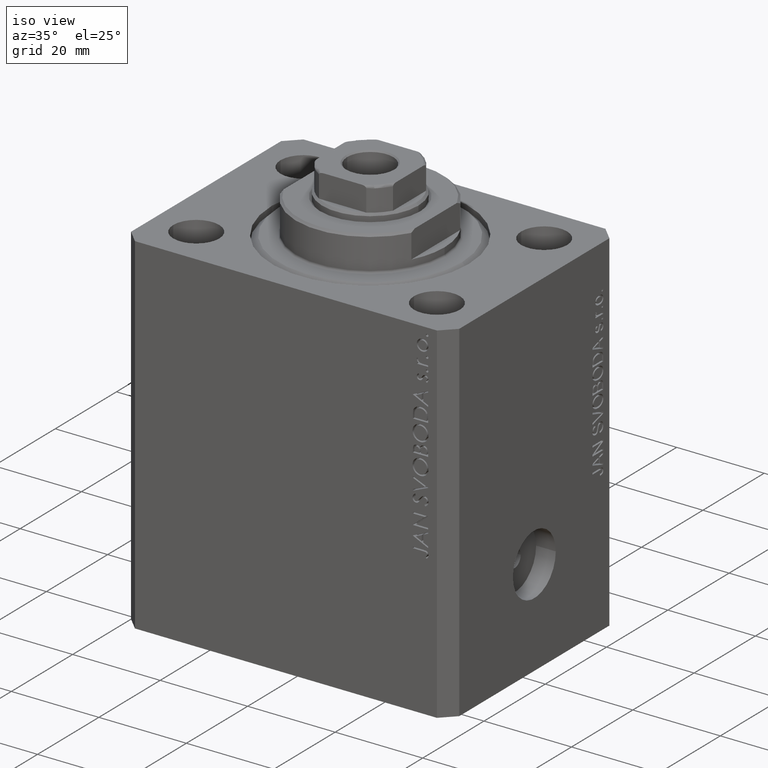
[diagram: clean part render]
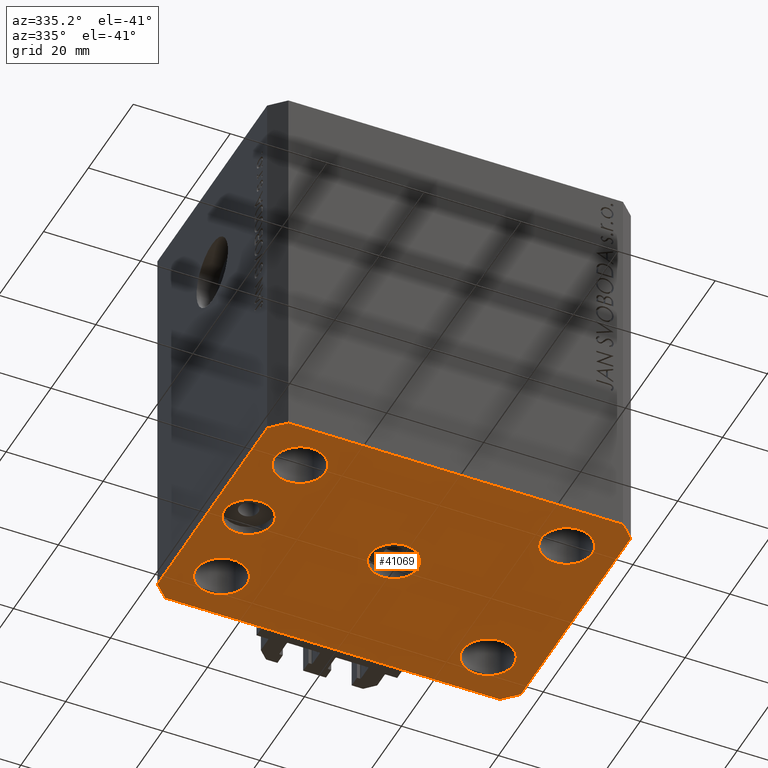
[diagram: tour spotlight — one face highlighted and labeled with its STEP entity id]
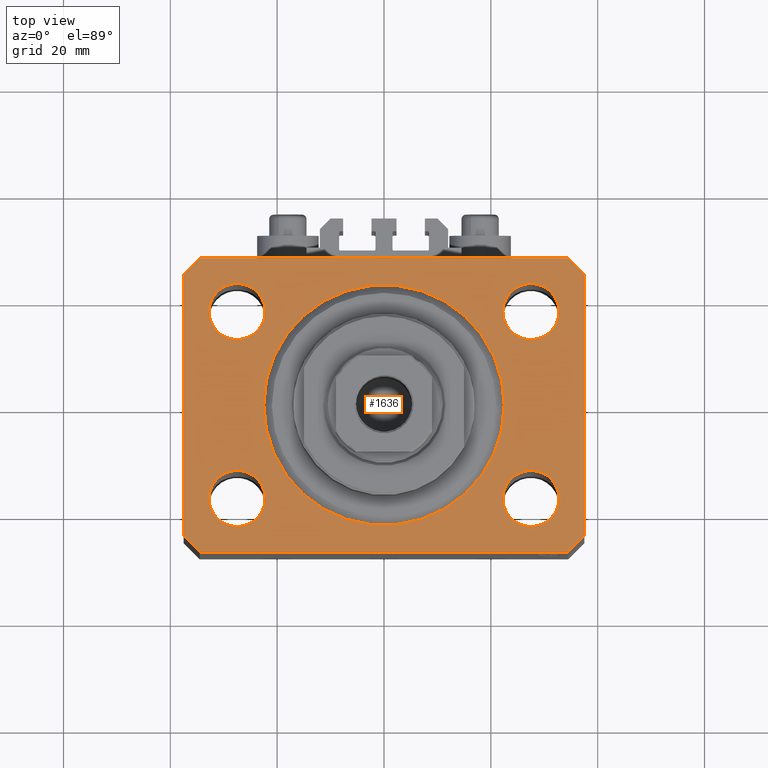
[diagram: tour spotlight — one face highlighted and labeled with its STEP entity id]
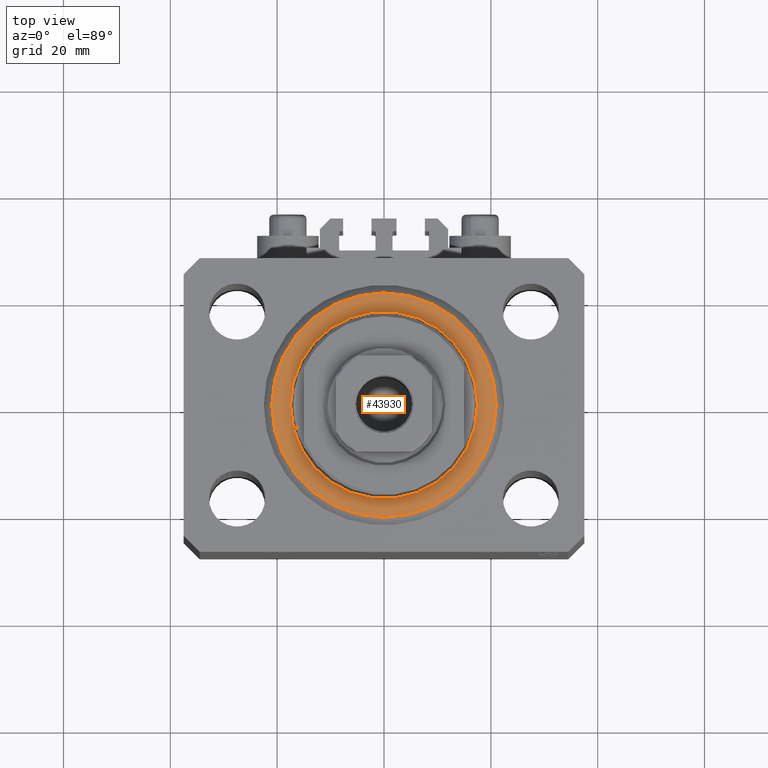
[diagram: tour spotlight — one face highlighted and labeled with its STEP entity id]
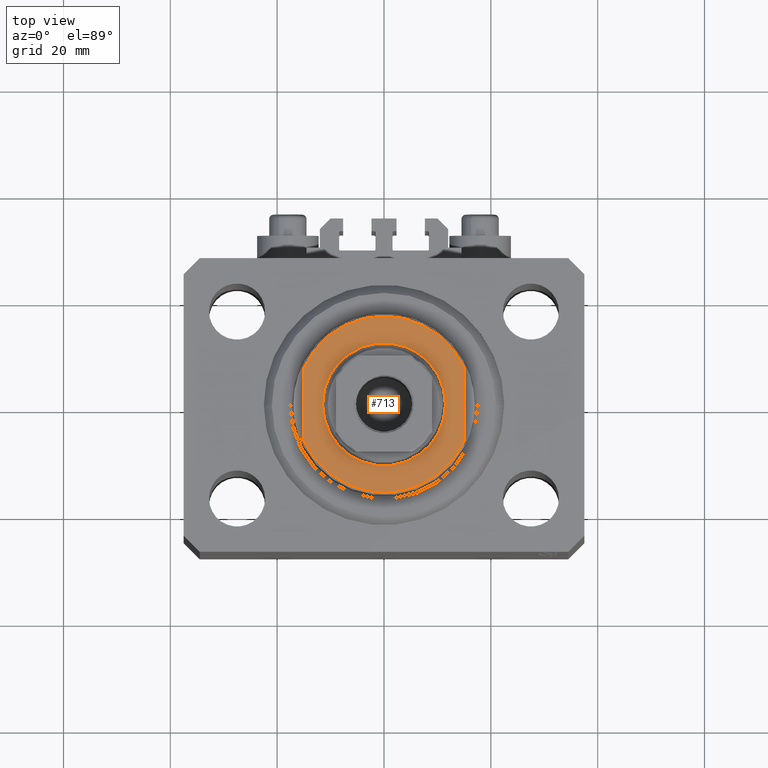
[diagram: tour spotlight — one face highlighted and labeled with its STEP entity id]
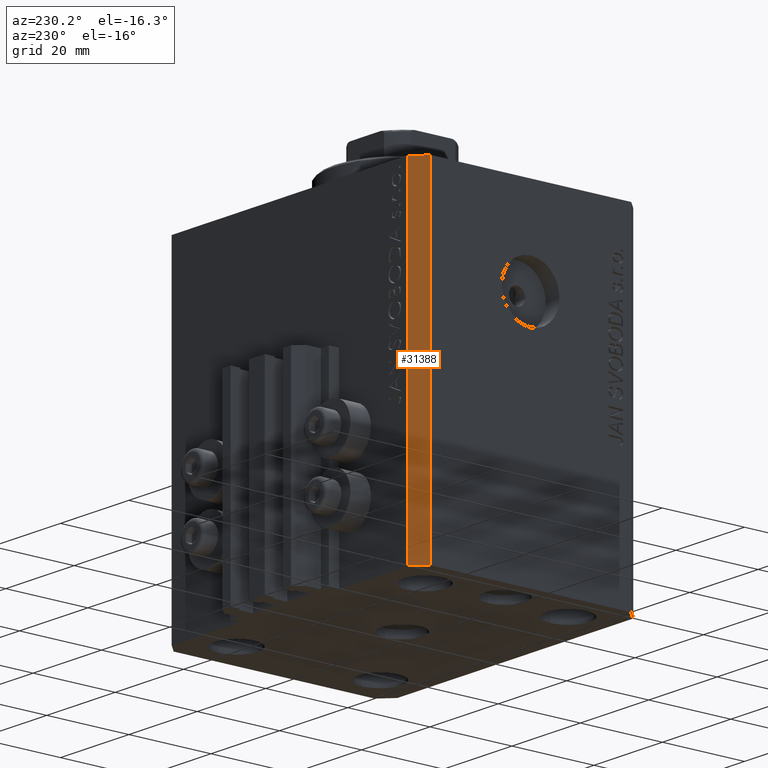
[diagram: tour spotlight — one face highlighted and labeled with its STEP entity id]
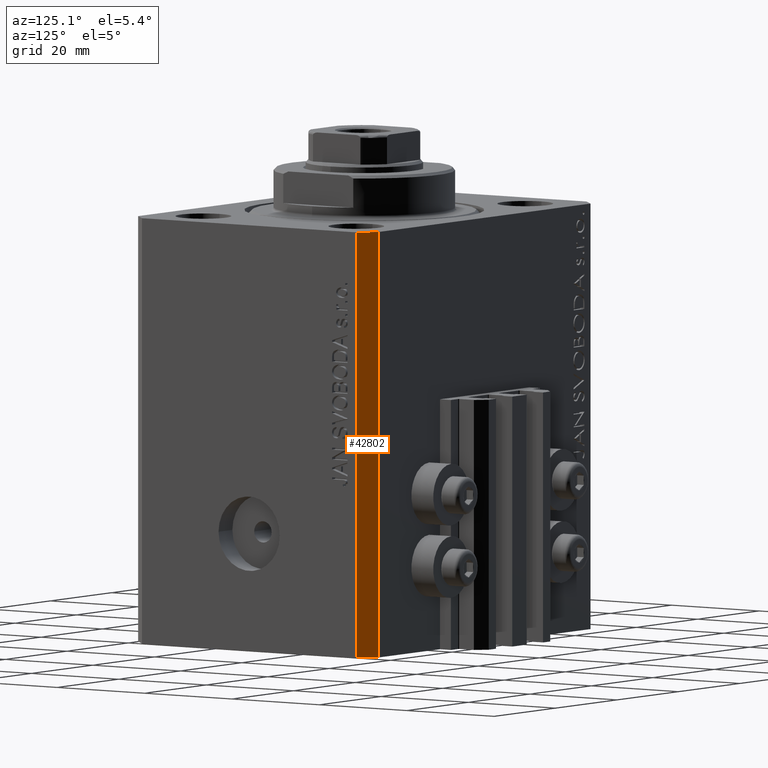
[diagram: tour spotlight — one face highlighted and labeled with its STEP entity id]
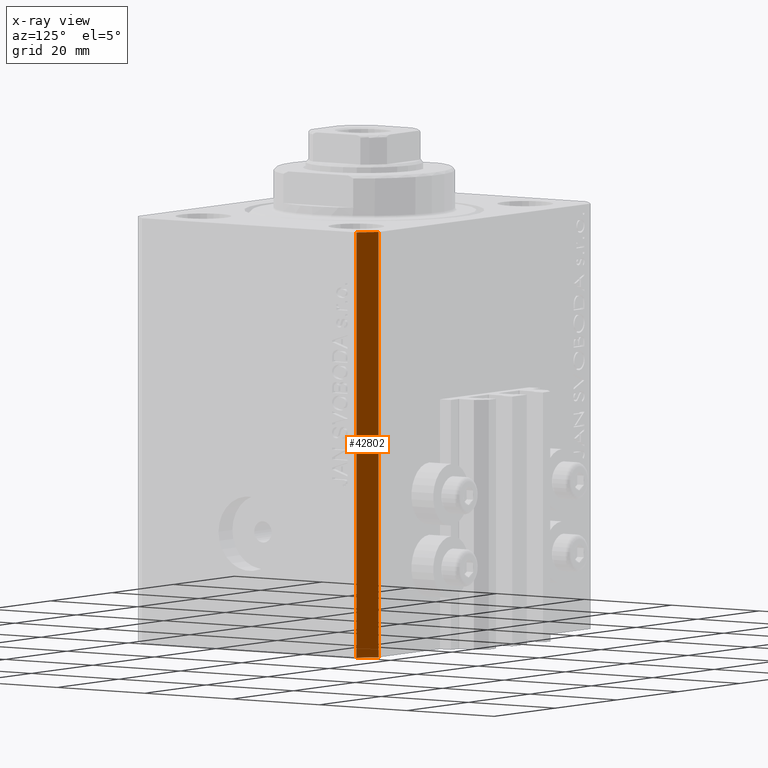
[diagram: x-ray of the same camera — body ghosted, this tour face saturated]
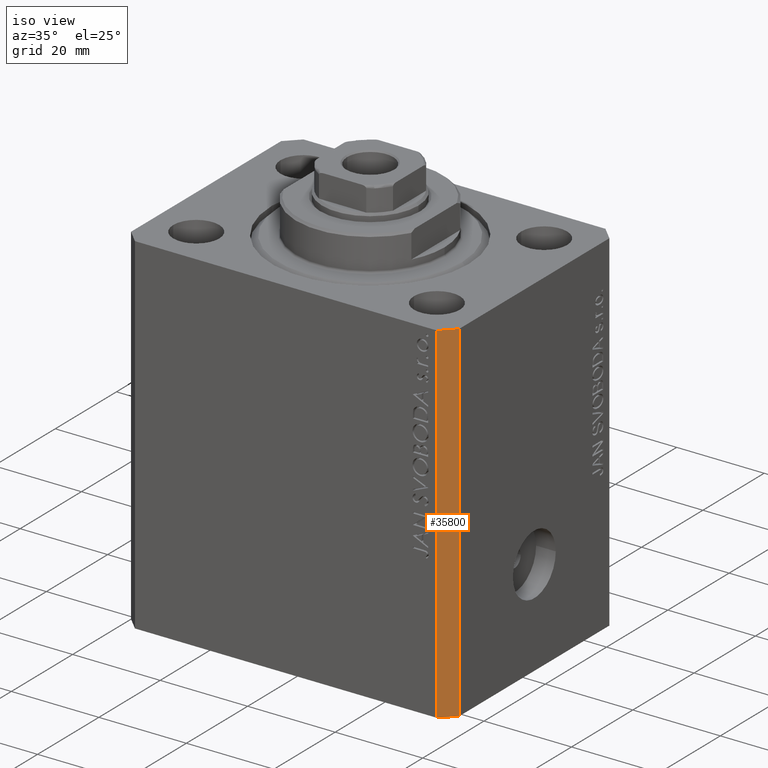
[diagram: tour spotlight — one face highlighted and labeled with its STEP entity id]
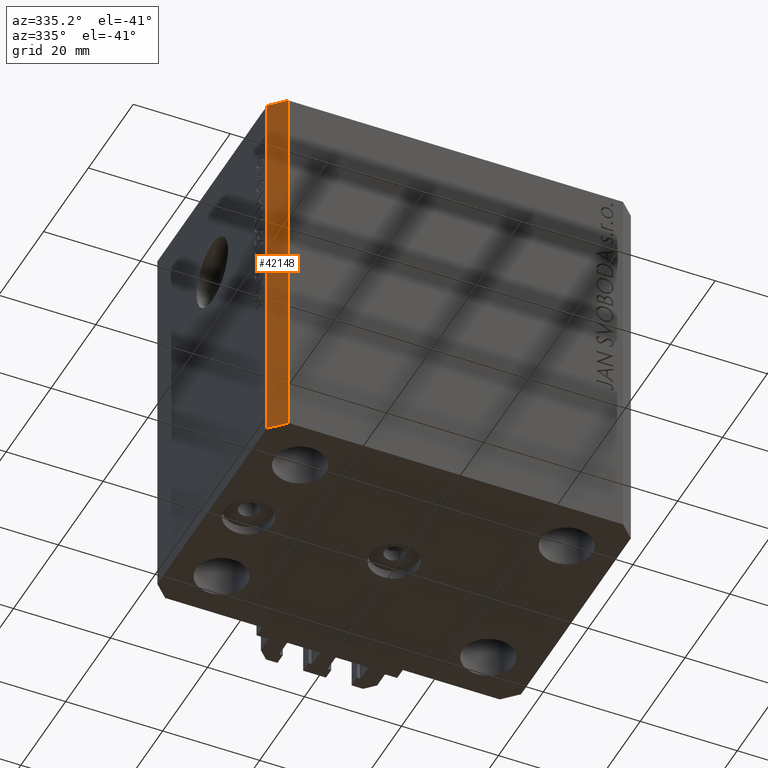
[diagram: tour spotlight — one face highlighted and labeled with its STEP entity id]
A machine part: a face-by-face anatomy tour. The part has 1042 B-rep faces; the first image is the clean iso view, then the 8 largest visible faces are spotlighted one at a time (largest first), each with its STEP entity span.

Face 1 — auxiliary view, entity #41069. In plain terms, the highlighted planar face has unit normal (0, 0, 1).
Definition (entity closure, byte-faithful):
#399 = EDGE_CURVE ( 'NONE', #25003, #41657, #3808, .T. ) ;
#533 = VECTOR ( 'NONE', #46873, 1000.000000000000000 ) ;
#963 = CARTESIAN_POINT ( 'NONE',  ( -22.25000000000000000, 17.49999999999999645, -80.00000000000000000 ) ) ;
#1087 = LINE ( 'NONE', #8998, #23599 ) ;
#1459 = VERTEX_POINT ( 'NONE', #36708 ) ;
#1566 = ORIENTED_EDGE ( 'NONE', *, *, #33395, .F. ) ;
#1682 = VERTEX_POINT ( 'NONE', #45585 ) ;
#1717 = DIRECTION ( 'NONE',  ( 1.000000000000000000, 0.000000000000000000, 0.000000000000000000 ) ) ;
#1892 = DIRECTION ( 'NONE',  ( -1.000000000000000000, 0.000000000000000000, 0.000000000000000000 ) ) ;
#1966 = EDGE_LOOP ( 'NONE', ( #25850, #8445 ) ) ;
#1984 = DIRECTION ( 'NONE',  ( -0.000000000000000000, -0.000000000000000000, -1.000000000000000000 ) ) ;
#2019 = ORIENTED_EDGE ( 'NONE', *, *, #45847, .F. ) ;
#2471 = LINE ( 'NONE', #28149, #533 ) ;
#3060 = DIRECTION ( 'NONE',  ( -1.000000000000000000, 0.000000000000000000, 0.000000000000000000 ) ) ;
#3165 = FACE_BOUND ( 'NONE', #20021, .T. ) ;
#3426 = AXIS2_PLACEMENT_3D ( 'NONE', #5314, #16576, #1717 ) ;
#3557 = VERTEX_POINT ( 'NONE', #45175 ) ;
#3572 = CARTESIAN_POINT ( 'NONE',  ( -32.74999999999999289, -17.50000000000000000, -80.00000000000000000 ) ) ;
#3704 = EDGE_CURVE ( 'NONE', #20411, #20989, #30283, .T. ) ;
#3808 = CIRCLE ( 'NONE', #30648, 5.250000000000000888 ) ;
#3815 = AXIS2_PLACEMENT_3D ( 'NONE', #40342, #39634, #24756 ) ;
#4281 = CARTESIAN_POINT ( 'NONE',  ( 32.74999999999999289, -17.50000000000000000, -80.00000000000000000 ) ) ;
#4323 = CARTESIAN_POINT ( 'NONE',  ( 37.49999999999999289, -24.50000000000000000, -80.00000000000000000 ) ) ;
#4923 = DIRECTION ( 'NONE',  ( 0.7071067811865474617, 0.7071067811865474617, 0.000000000000000000 ) ) ;
#5058 = ORIENTED_EDGE ( 'NONE', *, *, #18304, .F. ) ;
#5314 = CARTESIAN_POINT ( 'NONE',  ( -27.49999999999999289, -17.50000000000000000, -80.00000000000000000 ) ) ;
#5462 = CIRCLE ( 'NONE', #39184, 5.250000000000000888 ) ;
#5565 = CARTESIAN_POINT ( 'NONE',  ( -37.49999999999999289, -24.50000000000000000, -80.00000000000000000 ) ) ;
#5802 = VERTEX_POINT ( 'NONE', #24532 ) ;
#6097 = EDGE_CURVE ( 'NONE', #1459, #46765, #34820, .T. ) ;
#6750 = CARTESIAN_POINT ( 'NONE',  ( 27.49999999999999289, -17.50000000000000000, -80.00000000000000000 ) ) ;
#6757 = FACE_BOUND ( 'NONE', #34904, .T. ) ;
#7063 = CARTESIAN_POINT ( 'NONE',  ( 22.24999999999999289, -17.50000000000000000, -80.00000000000000000 ) ) ;
#8445 = ORIENTED_EDGE ( 'NONE', *, *, #29225, .F. ) ;
#8888 = VERTEX_POINT ( 'NONE', #4281 ) ;
#8998 = CARTESIAN_POINT ( 'NONE',  ( 34.49999999999999289, -27.49999999999999645, -80.00000000000000000 ) ) ;
#9039 = EDGE_CURVE ( 'NONE', #22486, #1459, #13839, .T. ) ;
#9702 = CARTESIAN_POINT ( 'NONE',  ( -34.49999999999999289, 27.50000000000000000, -80.00000000000000000 ) ) ;
#9847 = DIRECTION ( 'NONE',  ( 0.000000000000000000, -1.000000000000000000, 0.000000000000000000 ) ) ;
#10088 = LINE ( 'NONE', #20639, #40788 ) ;
#10659 = AXIS2_PLACEMENT_3D ( 'NONE', #35146, #17365, #31538 ) ;
#10701 = ORIENTED_EDGE ( 'NONE', *, *, #15253, .F. ) ;
#11080 = CARTESIAN_POINT ( 'NONE',  ( 5.000000000000000000, 6.123233995736765296E-16, -80.00000000000000000 ) ) ;
#11100 = CARTESIAN_POINT ( 'NONE',  ( -27.49999999999999289, -17.50000000000000000, -80.00000000000000000 ) ) ;
#11418 = VERTEX_POINT ( 'NONE', #27967 ) ;
#11559 = CIRCLE ( 'NONE', #36848, 5.250000000000000888 ) ;
#12107 = CARTESIAN_POINT ( 'NONE',  ( -25.00000000000000000, 6.123233995736762338E-16, -80.00000000000000000 ) ) ;
#13497 = ORIENTED_EDGE ( 'NONE', *, *, #6097, .F. ) ;
#13544 = ORIENTED_EDGE ( 'NONE', *, *, #9039, .F. ) ;
#13785 = ORIENTED_EDGE ( 'NONE', *, *, #40191, .F. ) ;
#13839 = LINE ( 'NONE', #14302, #36383 ) ;
#13963 = CARTESIAN_POINT ( 'NONE',  ( 0.000000000000000000, 0.000000000000000000, -80.00000000000000000 ) ) ;
#14302 = CARTESIAN_POINT ( 'NONE',  ( 37.49999999999999289, -24.50000000000000000, -80.00000000000000000 ) ) ;
#14798 = EDGE_LOOP ( 'NONE', ( #42600, #1566 ) ) ;
#15055 = VERTEX_POINT ( 'NONE', #7063 ) ;
#15253 = EDGE_CURVE ( 'NONE', #11418, #31894, #2471, .T. ) ;
#15256 = CARTESIAN_POINT ( 'NONE',  ( 27.50000000000000000, 17.49999999999999289, -80.00000000000000000 ) ) ;
#15467 = DIRECTION ( 'NONE',  ( -1.000000000000000000, 0.000000000000000000, 0.000000000000000000 ) ) ;
#16576 = DIRECTION ( 'NONE',  ( -0.000000000000000000, -0.000000000000000000, -1.000000000000000000 ) ) ;
#16780 = CARTESIAN_POINT ( 'NONE',  ( 34.50000000000056843, 27.50000000000000000, -80.00000000000000000 ) ) ;
#16962 = DIRECTION ( 'NONE',  ( -0.000000000000000000, -0.000000000000000000, -1.000000000000000000 ) ) ;
#17034 = CIRCLE ( 'NONE', #32382, 4.999999999999997335 ) ;
#17331 = FACE_BOUND ( 'NONE', #25890, .T. ) ;
#17365 = DIRECTION ( 'NONE',  ( -0.000000000000000000, -0.000000000000000000, -1.000000000000000000 ) ) ;
#17562 = FACE_BOUND ( 'NONE', #19934, .T. ) ;
#17800 = PLANE ( 'NONE',  #34584 ) ;
#17929 = DIRECTION ( 'NONE',  ( 0.000000000000000000, 0.000000000000000000, -1.000000000000000000 ) ) ;
#18166 = EDGE_CURVE ( 'NONE', #31894, #22486, #1087, .T. ) ;
#18304 = EDGE_CURVE ( 'NONE', #18966, #1682, #42353, .T. ) ;
#18966 = VERTEX_POINT ( 'NONE', #32311 ) ;
#19934 = EDGE_LOOP ( 'NONE', ( #13785, #32236 ) ) ;
#20021 = EDGE_LOOP ( 'NONE', ( #46143, #39028 ) ) ;
#20041 = ORIENTED_EDGE ( 'NONE', *, *, #399, .F. ) ;
#20131 = VECTOR ( 'NONE', #1892, 1000.000000000000000 ) ;
#20254 = EDGE_CURVE ( 'NONE', #41640, #24401, #39763, .T. ) ;
#20411 = VERTEX_POINT ( 'NONE', #38021 ) ;
#20432 = DIRECTION ( 'NONE',  ( 0.7071067811865483499, -0.7071067811865466846, 0.000000000000000000 ) ) ;
#20585 = CARTESIAN_POINT ( 'NONE',  ( 34.50000000000056843, 27.50000000000000000, -80.00000000000000000 ) ) ;
#20639 = CARTESIAN_POINT ( 'NONE',  ( -37.49999999999999289, 24.50000000000000000, -80.00000000000000000 ) ) ;
#20799 = CARTESIAN_POINT ( 'NONE',  ( 27.50000000000000000, 17.49999999999999289, -80.00000000000000000 ) ) ;
#20886 = CARTESIAN_POINT ( 'NONE',  ( 32.75000000000000000, 17.49999999999999289, -80.00000000000000000 ) ) ;
#20933 = FACE_BOUND ( 'NONE', #14798, .T. ) ;
#20989 = VERTEX_POINT ( 'NONE', #3572 ) ;
#21507 = EDGE_LOOP ( 'NONE', ( #33316, #13497, #13544, #44033, #10701, #30804, #39022, #5058 ) ) ;
#21637 = DIRECTION ( 'NONE',  ( 1.000000000000000000, 0.000000000000000000, 0.000000000000000000 ) ) ;
#21713 = CARTESIAN_POINT ( 'NONE',  ( -32.75000000000000000, 17.49999999999999645, -80.00000000000000000 ) ) ;
#21917 = VERTEX_POINT ( 'NONE', #23278 ) ;
#22009 = EDGE_CURVE ( 'NONE', #41183, #5802, #31404, .T. ) ;
#22406 = CIRCLE ( 'NONE', #33131, 5.000000000000000000 ) ;
#22486 = VERTEX_POINT ( 'NONE', #4323 ) ;
#23248 = EDGE_CURVE ( 'NONE', #41657, #25003, #38237, .T. ) ;
#23278 = CARTESIAN_POINT ( 'NONE',  ( 22.25000000000000000, 17.49999999999999289, -80.00000000000000000 ) ) ;
#23599 = VECTOR ( 'NONE', #4923, 1000.000000000000114 ) ;
#24059 = DIRECTION ( 'NONE',  ( 1.000000000000000000, 0.000000000000000000, 0.000000000000000000 ) ) ;
#24401 = VERTEX_POINT ( 'NONE', #12107 ) ;
#24532 = CARTESIAN_POINT ( 'NONE',  ( -5.000000000000000000, 0.000000000000000000, -80.00000000000000000 ) ) ;
#24756 = DIRECTION ( 'NONE',  ( 1.000000000000000000, 0.000000000000000000, 0.000000000000000000 ) ) ;
#24779 = DIRECTION ( 'NONE',  ( 1.000000000000000000, 0.000000000000000000, -0.000000000000000000 ) ) ;
#25003 = VERTEX_POINT ( 'NONE', #963 ) ;
#25161 = AXIS2_PLACEMENT_3D ( 'NONE', #28198, #42843, #39242 ) ;
#25501 = EDGE_CURVE ( 'NONE', #3557, #11418, #38466, .T. ) ;
#25850 = ORIENTED_EDGE ( 'NONE', *, *, #3704, .F. ) ;
#25890 = EDGE_LOOP ( 'NONE', ( #2019, #33285 ) ) ;
#25976 = DIRECTION ( 'NONE',  ( 1.000000000000000000, 0.000000000000000000, 0.000000000000000000 ) ) ;
#27772 = ORIENTED_EDGE ( 'NONE', *, *, #23248, .F. ) ;
#27872 = AXIS2_PLACEMENT_3D ( 'NONE', #6750, #43491, #21637 ) ;
#27967 = CARTESIAN_POINT ( 'NONE',  ( -34.49999999999998579, -27.49999999999999645, -80.00000000000000000 ) ) ;
#28019 = DIRECTION ( 'NONE',  ( 1.000000000000000000, 0.000000000000000000, 0.000000000000000000 ) ) ;
#28149 = CARTESIAN_POINT ( 'NONE',  ( -34.49999999999998579, -27.49999999999999645, -80.00000000000000000 ) ) ;
#28198 = CARTESIAN_POINT ( 'NONE',  ( -30.00000000000000000, 0.000000000000000000, -80.00000000000000000 ) ) ;
#28325 = AXIS2_PLACEMENT_3D ( 'NONE', #33719, #45247, #15467 ) ;
#28850 = DIRECTION ( 'NONE',  ( 0.000000000000000000, 0.000000000000000000, 1.000000000000000000 ) ) ;
#28954 = DIRECTION ( 'NONE',  ( 1.076236605503979380E-14, 1.000000000000000000, 0.000000000000000000 ) ) ;
#29225 = EDGE_CURVE ( 'NONE', #20989, #20411, #36854, .T. ) ;
#29939 = EDGE_CURVE ( 'NONE', #21917, #42935, #5462, .T. ) ;
#30283 = CIRCLE ( 'NONE', #3426, 5.250000000000000888 ) ;
#30648 = AXIS2_PLACEMENT_3D ( 'NONE', #34869, #1984, #24059 ) ;
#30804 = ORIENTED_EDGE ( 'NONE', *, *, #25501, .F. ) ;
#31404 = CIRCLE ( 'NONE', #28325, 5.000000000000000000 ) ;
#31447 = CARTESIAN_POINT ( 'NONE',  ( 37.50000000000051870, 24.49999999999995381, -80.00000000000000000 ) ) ;
#31538 = DIRECTION ( 'NONE',  ( 1.000000000000000000, 0.000000000000000000, 0.000000000000000000 ) ) ;
#31894 = VERTEX_POINT ( 'NONE', #41969 ) ;
#31974 = FACE_OUTER_BOUND ( 'NONE', #21507, .T. ) ;
#32236 = ORIENTED_EDGE ( 'NONE', *, *, #29939, .F. ) ;
#32311 = CARTESIAN_POINT ( 'NONE',  ( -34.49999999999999289, 27.50000000000000000, -80.00000000000000000 ) ) ;
#32382 = AXIS2_PLACEMENT_3D ( 'NONE', #36187, #17929, #3060 ) ;
#33131 = AXIS2_PLACEMENT_3D ( 'NONE', #41703, #45074, #33788 ) ;
#33285 = ORIENTED_EDGE ( 'NONE', *, *, #22009, .F. ) ;
#33316 = ORIENTED_EDGE ( 'NONE', *, *, #33343, .F. ) ;
#33343 = EDGE_CURVE ( 'NONE', #46765, #18966, #38847, .T. ) ;
#33395 = EDGE_CURVE ( 'NONE', #24401, #41640, #17034, .T. ) ;
#33719 = CARTESIAN_POINT ( 'NONE',  ( 0.000000000000000000, 0.000000000000000000, -80.00000000000000000 ) ) ;
#33788 = DIRECTION ( 'NONE',  ( -1.000000000000000000, 0.000000000000000000, 0.000000000000000000 ) ) ;
#34584 = AXIS2_PLACEMENT_3D ( 'NONE', #13963, #28850, #24779 ) ;
#34820 = LINE ( 'NONE', #31447, #39955 ) ;
#34869 = CARTESIAN_POINT ( 'NONE',  ( -27.50000000000000000, 17.49999999999999645, -80.00000000000000000 ) ) ;
#34904 = EDGE_LOOP ( 'NONE', ( #20041, #27772 ) ) ;
#35146 = CARTESIAN_POINT ( 'NONE',  ( 27.49999999999999289, -17.50000000000000000, -80.00000000000000000 ) ) ;
#36187 = CARTESIAN_POINT ( 'NONE',  ( -30.00000000000000000, 0.000000000000000000, -80.00000000000000000 ) ) ;
#36383 = VECTOR ( 'NONE', #28954, 1000.000000000000000 ) ;
#36708 = CARTESIAN_POINT ( 'NONE',  ( 37.50000000000051870, 24.49999999999995381, -80.00000000000000000 ) ) ;
#36848 = AXIS2_PLACEMENT_3D ( 'NONE', #20799, #16962, #28019 ) ;
#36854 = CIRCLE ( 'NONE', #42988, 5.250000000000000888 ) ;
#37392 = VECTOR ( 'NONE', #46662, 1000.000000000000000 ) ;
#37437 = EDGE_CURVE ( 'NONE', #8888, #15055, #46683, .T. ) ;
#38021 = CARTESIAN_POINT ( 'NONE',  ( -22.24999999999999289, -17.50000000000000000, -80.00000000000000000 ) ) ;
#38237 = CIRCLE ( 'NONE', #3815, 5.250000000000000888 ) ;
#38306 = VECTOR ( 'NONE', #20432, 1000.000000000000000 ) ;
#38466 = LINE ( 'NONE', #5565, #38306 ) ;
#38662 = DIRECTION ( 'NONE',  ( -0.7071067811865364705, 0.7071067811865584529, 0.000000000000000000 ) ) ;
#38847 = LINE ( 'NONE', #20585, #20131 ) ;
#39022 = ORIENTED_EDGE ( 'NONE', *, *, #43818, .F. ) ;
#39028 = ORIENTED_EDGE ( 'NONE', *, *, #47441, .F. ) ;
#39184 = AXIS2_PLACEMENT_3D ( 'NONE', #15256, #43427, #39818 ) ;
#39242 = DIRECTION ( 'NONE',  ( -1.000000000000000000, 0.000000000000000000, 0.000000000000000000 ) ) ;
#39634 = DIRECTION ( 'NONE',  ( -0.000000000000000000, -0.000000000000000000, -1.000000000000000000 ) ) ;
#39658 = FACE_BOUND ( 'NONE', #1966, .T. ) ;
#39763 = CIRCLE ( 'NONE', #25161, 4.999999999999997335 ) ;
#39818 = DIRECTION ( 'NONE',  ( 1.000000000000000000, 0.000000000000000000, 0.000000000000000000 ) ) ;
#39955 = VECTOR ( 'NONE', #38662, 1000.000000000000114 ) ;
#40191 = EDGE_CURVE ( 'NONE', #42935, #21917, #11559, .T. ) ;
#40342 = CARTESIAN_POINT ( 'NONE',  ( -27.50000000000000000, 17.49999999999999645, -80.00000000000000000 ) ) ;
#40788 = VECTOR ( 'NONE', #9847, 1000.000000000000000 ) ;
#41069 = ADVANCED_FACE ( 'NONE', ( #17331, #20933, #39658, #3165, #17562, #6757, #31974 ), #17800, .F. ) ;
#41183 = VERTEX_POINT ( 'NONE', #11080 ) ;
#41640 = VERTEX_POINT ( 'NONE', #43805 ) ;
#41657 = VERTEX_POINT ( 'NONE', #21713 ) ;
#41703 = CARTESIAN_POINT ( 'NONE',  ( 0.000000000000000000, 0.000000000000000000, -80.00000000000000000 ) ) ;
#41969 = CARTESIAN_POINT ( 'NONE',  ( 34.49999999999999289, -27.49999999999999645, -80.00000000000000000 ) ) ;
#42353 = LINE ( 'NONE', #9702, #37392 ) ;
#42600 = ORIENTED_EDGE ( 'NONE', *, *, #20254, .F. ) ;
#42843 = DIRECTION ( 'NONE',  ( 0.000000000000000000, 0.000000000000000000, -1.000000000000000000 ) ) ;
#42935 = VERTEX_POINT ( 'NONE', #20886 ) ;
#42988 = AXIS2_PLACEMENT_3D ( 'NONE', #11100, #44718, #25976 ) ;
#43427 = DIRECTION ( 'NONE',  ( -0.000000000000000000, -0.000000000000000000, -1.000000000000000000 ) ) ;
#43491 = DIRECTION ( 'NONE',  ( -0.000000000000000000, -0.000000000000000000, -1.000000000000000000 ) ) ;
#43805 = CARTESIAN_POINT ( 'NONE',  ( -34.99999999999999289, 0.000000000000000000, -80.00000000000000000 ) ) ;
#43818 = EDGE_CURVE ( 'NONE', #1682, #3557, #10088, .T. ) ;
#44033 = ORIENTED_EDGE ( 'NONE', *, *, #18166, .F. ) ;
#44718 = DIRECTION ( 'NONE',  ( -0.000000000000000000, -0.000000000000000000, -1.000000000000000000 ) ) ;
#44733 = CIRCLE ( 'NONE', #27872, 5.250000000000000888 ) ;
#45074 = DIRECTION ( 'NONE',  ( 0.000000000000000000, 0.000000000000000000, -1.000000000000000000 ) ) ;
#45175 = CARTESIAN_POINT ( 'NONE',  ( -37.49999999999999289, -24.50000000000000000, -80.00000000000000000 ) ) ;
#45247 = DIRECTION ( 'NONE',  ( 0.000000000000000000, 0.000000000000000000, -1.000000000000000000 ) ) ;
#45585 = CARTESIAN_POINT ( 'NONE',  ( -37.49999999999999289, 24.50000000000000000, -80.00000000000000000 ) ) ;
#45847 = EDGE_CURVE ( 'NONE', #5802, #41183, #22406, .T. ) ;
#46143 = ORIENTED_EDGE ( 'NONE', *, *, #37437, .F. ) ;
#46662 = DIRECTION ( 'NONE',  ( -0.7071067811865471286, -0.7071067811865479058, 0.000000000000000000 ) ) ;
#46683 = CIRCLE ( 'NONE', #10659, 5.250000000000000888 ) ;
#46765 = VERTEX_POINT ( 'NONE', #16780 ) ;
#46873 = DIRECTION ( 'NONE',  ( 1.000000000000000000, 0.000000000000000000, 0.000000000000000000 ) ) ;
#47441 = EDGE_CURVE ( 'NONE', #15055, #8888, #44733, .T. ) ;

Face 2 — top view, entity #1636. In plain terms, the highlighted planar face has unit normal (0, 0, 1).
Definition (entity closure, byte-faithful):
#139 = AXIS2_PLACEMENT_3D ( 'NONE', #10428, #24173, #39705 ) ;
#229 = DIRECTION ( 'NONE',  ( 0.000000000000000000, 0.000000000000000000, 1.000000000000000000 ) ) ;
#653 = VERTEX_POINT ( 'NONE', #37249 ) ;
#978 = ORIENTED_EDGE ( 'NONE', *, *, #39833, .T. ) ;
#1019 = ORIENTED_EDGE ( 'NONE', *, *, #36543, .F. ) ;
#1050 = VECTOR ( 'NONE', #3301, 1000.000000000000000 ) ;
#1636 = ADVANCED_FACE ( 'NONE', ( #18928, #22770, #15327, #26864, #26385, #12445 ), #27103, .T. ) ;
#1827 = CARTESIAN_POINT ( 'NONE',  ( 37.50000000000051870, 24.49999999999995381, 0.000000000000000000 ) ) ;
#2359 = CARTESIAN_POINT ( 'NONE',  ( -22.25000000000000000, 17.49999999999999645, 0.000000000000000000 ) ) ;
#2808 = CARTESIAN_POINT ( 'NONE',  ( -32.75000000000000000, 17.49999999999999645, 0.000000000000000000 ) ) ;
#2895 = CARTESIAN_POINT ( 'NONE',  ( 22.25000000000000000, 17.49999999999999289, 0.000000000000000000 ) ) ;
#3047 = LINE ( 'NONE', #43611, #42264 ) ;
#3100 = EDGE_CURVE ( 'NONE', #27317, #24864, #13998, .T. ) ;
#3301 = DIRECTION ( 'NONE',  ( 0.000000000000000000, -1.000000000000000000, 0.000000000000000000 ) ) ;
#3805 = LINE ( 'NONE', #25659, #20339 ) ;
#3910 = VECTOR ( 'NONE', #42609, 1000.000000000000000 ) ;
#4616 = DIRECTION ( 'NONE',  ( 0.000000000000000000, 0.000000000000000000, 1.000000000000000000 ) ) ;
#4859 = DIRECTION ( 'NONE',  ( 1.000000000000000000, 0.000000000000000000, 0.000000000000000000 ) ) ;
#4967 = EDGE_CURVE ( 'NONE', #40204, #6755, #30554, .T. ) ;
#5316 = CARTESIAN_POINT ( 'NONE',  ( -27.49999999999999289, -17.50000000000000000, 0.000000000000000000 ) ) ;
#5707 = EDGE_CURVE ( 'NONE', #14200, #653, #20827, .T. ) ;
#5708 = EDGE_LOOP ( 'NONE', ( #22870, #40870, #31088, #38277, #27476, #9483, #16088, #978 ) ) ;
#6304 = CIRCLE ( 'NONE', #18563, 5.250000000000000888 ) ;
#6688 = VERTEX_POINT ( 'NONE', #1827 ) ;
#6755 = VERTEX_POINT ( 'NONE', #15977 ) ;
#7877 = EDGE_LOOP ( 'NONE', ( #26236, #9297 ) ) ;
#8211 = DIRECTION ( 'NONE',  ( 1.000000000000000000, 0.000000000000000000, 0.000000000000000000 ) ) ;
#8376 = CIRCLE ( 'NONE', #32883, 22.50000000000000355 ) ;
#8417 = CARTESIAN_POINT ( 'NONE',  ( -32.74999999999999289, -17.50000000000000000, 0.000000000000000000 ) ) ;
#9142 = DIRECTION ( 'NONE',  ( 1.000000000000000000, 0.000000000000000000, 0.000000000000000000 ) ) ;
#9266 = CARTESIAN_POINT ( 'NONE',  ( 27.50000000000000000, 17.49999999999999289, 0.000000000000000000 ) ) ;
#9297 = ORIENTED_EDGE ( 'NONE', *, *, #21648, .F. ) ;
#9483 = ORIENTED_EDGE ( 'NONE', *, *, #4967, .T. ) ;
#9880 = EDGE_CURVE ( 'NONE', #12233, #33273, #46403, .T. ) ;
#10428 = CARTESIAN_POINT ( 'NONE',  ( 27.49999999999999289, -17.50000000000000000, 0.000000000000000000 ) ) ;
#10458 = DIRECTION ( 'NONE',  ( 0.000000000000000000, 0.000000000000000000, 1.000000000000000000 ) ) ;
#10744 = CARTESIAN_POINT ( 'NONE',  ( -37.49999999999999289, 24.50000000000000000, 0.000000000000000000 ) ) ;
#10799 = CARTESIAN_POINT ( 'NONE',  ( -27.50000000000000000, 17.49999999999999645, 0.000000000000000000 ) ) ;
#11423 = VERTEX_POINT ( 'NONE', #28671 ) ;
#12004 = EDGE_CURVE ( 'NONE', #46602, #40204, #3805, .T. ) ;
#12233 = VERTEX_POINT ( 'NONE', #2808 ) ;
#12445 = FACE_OUTER_BOUND ( 'NONE', #5708, .T. ) ;
#13650 = VERTEX_POINT ( 'NONE', #8417 ) ;
#13998 = CIRCLE ( 'NONE', #42390, 5.250000000000000888 ) ;
#14029 = VECTOR ( 'NONE', #23355, 1000.000000000000114 ) ;
#14200 = VERTEX_POINT ( 'NONE', #36161 ) ;
#14381 = DIRECTION ( 'NONE',  ( 1.000000000000000000, 0.000000000000000000, 0.000000000000000000 ) ) ;
#14407 = CARTESIAN_POINT ( 'NONE',  ( -34.49999999999998579, -27.49999999999999645, 0.000000000000000000 ) ) ;
#14432 = ORIENTED_EDGE ( 'NONE', *, *, #9880, .F. ) ;
#14683 = CARTESIAN_POINT ( 'NONE',  ( -34.49999999999999289, 27.50000000000000000, 0.000000000000000000 ) ) ;
#14724 = VERTEX_POINT ( 'NONE', #24525 ) ;
#15327 = FACE_BOUND ( 'NONE', #17315, .T. ) ;
#15803 = DIRECTION ( 'NONE',  ( 1.000000000000000000, 0.000000000000000000, -0.000000000000000000 ) ) ;
#15886 = AXIS2_PLACEMENT_3D ( 'NONE', #40317, #229, #14381 ) ;
#15977 = CARTESIAN_POINT ( 'NONE',  ( 37.49999999999999289, -24.50000000000000000, 0.000000000000000000 ) ) ;
#15979 = DIRECTION ( 'NONE',  ( 0.000000000000000000, 0.000000000000000000, 1.000000000000000000 ) ) ;
#16087 = CIRCLE ( 'NONE', #42922, 22.50000000000000355 ) ;
#16088 = ORIENTED_EDGE ( 'NONE', *, *, #43327, .T. ) ;
#16217 = CARTESIAN_POINT ( 'NONE',  ( 0.000000000000000000, 0.000000000000000000, 0.000000000000000000 ) ) ;
#16563 = AXIS2_PLACEMENT_3D ( 'NONE', #23014, #29738, #15803 ) ;
#16593 = EDGE_CURVE ( 'NONE', #653, #14200, #29697, .T. ) ;
#17221 = VERTEX_POINT ( 'NONE', #17814 ) ;
#17315 = EDGE_LOOP ( 'NONE', ( #31037, #30256 ) ) ;
#17356 = VERTEX_POINT ( 'NONE', #14683 ) ;
#17548 = AXIS2_PLACEMENT_3D ( 'NONE', #36256, #32402, #31708 ) ;
#17684 = AXIS2_PLACEMENT_3D ( 'NONE', #5316, #34599, #8211 ) ;
#17814 = CARTESIAN_POINT ( 'NONE',  ( 34.50000000000056843, 27.50000000000000000, 0.000000000000000000 ) ) ;
#18563 = AXIS2_PLACEMENT_3D ( 'NONE', #19725, #4616, #4859 ) ;
#18928 = FACE_BOUND ( 'NONE', #36808, .T. ) ;
#19353 = DIRECTION ( 'NONE',  ( 0.000000000000000000, 0.000000000000000000, 1.000000000000000000 ) ) ;
#19576 = CARTESIAN_POINT ( 'NONE',  ( -37.49999999999999289, -24.50000000000000000, 0.000000000000000000 ) ) ;
#19725 = CARTESIAN_POINT ( 'NONE',  ( -27.49999999999999289, -17.50000000000000000, 0.000000000000000000 ) ) ;
#20339 = VECTOR ( 'NONE', #32843, 1000.000000000000000 ) ;
#20604 = VERTEX_POINT ( 'NONE', #22107 ) ;
#20827 = CIRCLE ( 'NONE', #139, 5.250000000000000888 ) ;
#21216 = LINE ( 'NONE', #24351, #3910 ) ;
#21589 = CARTESIAN_POINT ( 'NONE',  ( 32.75000000000000000, 17.49999999999999289, 0.000000000000000000 ) ) ;
#21648 = EDGE_CURVE ( 'NONE', #24864, #27317, #39024, .T. ) ;
#22107 = CARTESIAN_POINT ( 'NONE',  ( -37.49999999999999289, -24.50000000000000000, 0.000000000000000000 ) ) ;
#22256 = LINE ( 'NONE', #10744, #1050 ) ;
#22770 = FACE_BOUND ( 'NONE', #29294, .T. ) ;
#22870 = ORIENTED_EDGE ( 'NONE', *, *, #30163, .T. ) ;
#23014 = CARTESIAN_POINT ( 'NONE',  ( 0.000000000000000000, 0.000000000000000000, 0.000000000000000000 ) ) ;
#23355 = DIRECTION ( 'NONE',  ( 0.7071067811865474617, 0.7071067811865474617, 0.000000000000000000 ) ) ;
#23575 = ORIENTED_EDGE ( 'NONE', *, *, #26804, .F. ) ;
#24173 = DIRECTION ( 'NONE',  ( 0.000000000000000000, 0.000000000000000000, 1.000000000000000000 ) ) ;
#24351 = CARTESIAN_POINT ( 'NONE',  ( 34.50000000000056843, 27.50000000000000000, 0.000000000000000000 ) ) ;
#24525 = CARTESIAN_POINT ( 'NONE',  ( -22.50000000000000355, 2.755455298081545172E-15, 0.000000000000000000 ) ) ;
#24864 = VERTEX_POINT ( 'NONE', #2895 ) ;
#25362 = DIRECTION ( 'NONE',  ( 1.076236605503979380E-14, 1.000000000000000000, 0.000000000000000000 ) ) ;
#25645 = CARTESIAN_POINT ( 'NONE',  ( 37.50000000000051870, 24.49999999999995381, 0.000000000000000000 ) ) ;
#25659 = CARTESIAN_POINT ( 'NONE',  ( -34.49999999999998579, -27.49999999999999645, 0.000000000000000000 ) ) ;
#26185 = VECTOR ( 'NONE', #29812, 1000.000000000000000 ) ;
#26236 = ORIENTED_EDGE ( 'NONE', *, *, #3100, .F. ) ;
#26385 = FACE_BOUND ( 'NONE', #31848, .T. ) ;
#26548 = LINE ( 'NONE', #19576, #38400 ) ;
#26804 = EDGE_CURVE ( 'NONE', #46202, #14724, #16087, .T. ) ;
#26864 = FACE_BOUND ( 'NONE', #7877, .T. ) ;
#26921 = DIRECTION ( 'NONE',  ( 0.000000000000000000, 0.000000000000000000, 1.000000000000000000 ) ) ;
#27103 = PLANE ( 'NONE',  #16563 ) ;
#27248 = CARTESIAN_POINT ( 'NONE',  ( 22.50000000000000355, 0.000000000000000000, 0.000000000000000000 ) ) ;
#27317 = VERTEX_POINT ( 'NONE', #21589 ) ;
#27476 = ORIENTED_EDGE ( 'NONE', *, *, #12004, .T. ) ;
#28432 = EDGE_CURVE ( 'NONE', #13650, #33308, #31468, .T. ) ;
#28671 = CARTESIAN_POINT ( 'NONE',  ( -37.49999999999999289, 24.50000000000000000, 0.000000000000000000 ) ) ;
#29294 = EDGE_LOOP ( 'NONE', ( #40459, #29423 ) ) ;
#29338 = LINE ( 'NONE', #43993, #26185 ) ;
#29423 = ORIENTED_EDGE ( 'NONE', *, *, #28432, .F. ) ;
#29697 = CIRCLE ( 'NONE', #15886, 5.250000000000000888 ) ;
#29738 = DIRECTION ( 'NONE',  ( 0.000000000000000000, 0.000000000000000000, 1.000000000000000000 ) ) ;
#29812 = DIRECTION ( 'NONE',  ( -0.7071067811865471286, -0.7071067811865479058, 0.000000000000000000 ) ) ;
#30163 = EDGE_CURVE ( 'NONE', #17221, #17356, #21216, .T. ) ;
#30256 = ORIENTED_EDGE ( 'NONE', *, *, #16593, .F. ) ;
#30285 = CARTESIAN_POINT ( 'NONE',  ( -27.50000000000000000, 17.49999999999999645, 0.000000000000000000 ) ) ;
#30554 = LINE ( 'NONE', #45208, #14029 ) ;
#30632 = DIRECTION ( 'NONE',  ( 1.000000000000000000, 0.000000000000000000, 0.000000000000000000 ) ) ;
#30860 = CIRCLE ( 'NONE', #39282, 5.250000000000000888 ) ;
#31037 = ORIENTED_EDGE ( 'NONE', *, *, #5707, .F. ) ;
#31088 = ORIENTED_EDGE ( 'NONE', *, *, #36274, .T. ) ;
#31399 = CARTESIAN_POINT ( 'NONE',  ( -22.24999999999999289, -17.50000000000000000, 0.000000000000000000 ) ) ;
#31468 = CIRCLE ( 'NONE', #17684, 5.250000000000000888 ) ;
#31708 = DIRECTION ( 'NONE',  ( 1.000000000000000000, 0.000000000000000000, 0.000000000000000000 ) ) ;
#31848 = EDGE_LOOP ( 'NONE', ( #40633, #14432 ) ) ;
#32402 = DIRECTION ( 'NONE',  ( 0.000000000000000000, 0.000000000000000000, 1.000000000000000000 ) ) ;
#32843 = DIRECTION ( 'NONE',  ( 1.000000000000000000, 0.000000000000000000, 0.000000000000000000 ) ) ;
#32883 = AXIS2_PLACEMENT_3D ( 'NONE', #35904, #10458, #47182 ) ;
#33273 = VERTEX_POINT ( 'NONE', #2359 ) ;
#33308 = VERTEX_POINT ( 'NONE', #31399 ) ;
#33956 = EDGE_CURVE ( 'NONE', #33273, #12233, #30860, .T. ) ;
#34002 = DIRECTION ( 'NONE',  ( 1.000000000000000000, 0.000000000000000000, 0.000000000000000000 ) ) ;
#34599 = DIRECTION ( 'NONE',  ( 0.000000000000000000, 0.000000000000000000, 1.000000000000000000 ) ) ;
#35904 = CARTESIAN_POINT ( 'NONE',  ( 0.000000000000000000, 0.000000000000000000, 0.000000000000000000 ) ) ;
#36161 = CARTESIAN_POINT ( 'NONE',  ( 32.74999999999999289, -17.50000000000000000, 0.000000000000000000 ) ) ;
#36256 = CARTESIAN_POINT ( 'NONE',  ( 27.50000000000000000, 17.49999999999999289, 0.000000000000000000 ) ) ;
#36274 = EDGE_CURVE ( 'NONE', #11423, #20604, #22256, .T. ) ;
#36543 = EDGE_CURVE ( 'NONE', #14724, #46202, #8376, .T. ) ;
#36808 = EDGE_LOOP ( 'NONE', ( #23575, #1019 ) ) ;
#37249 = CARTESIAN_POINT ( 'NONE',  ( 22.24999999999999289, -17.50000000000000000, 0.000000000000000000 ) ) ;
#37578 = VECTOR ( 'NONE', #47488, 1000.000000000000114 ) ;
#38277 = ORIENTED_EDGE ( 'NONE', *, *, #40277, .T. ) ;
#38400 = VECTOR ( 'NONE', #45036, 1000.000000000000000 ) ;
#39024 = CIRCLE ( 'NONE', #17548, 5.250000000000000888 ) ;
#39282 = AXIS2_PLACEMENT_3D ( 'NONE', #10799, #47289, #46820 ) ;
#39705 = DIRECTION ( 'NONE',  ( 1.000000000000000000, 0.000000000000000000, 0.000000000000000000 ) ) ;
#39833 = EDGE_CURVE ( 'NONE', #6688, #17221, #40291, .T. ) ;
#40204 = VERTEX_POINT ( 'NONE', #40236 ) ;
#40236 = CARTESIAN_POINT ( 'NONE',  ( 34.49999999999999289, -27.49999999999999645, 0.000000000000000000 ) ) ;
#40277 = EDGE_CURVE ( 'NONE', #20604, #46602, #26548, .T. ) ;
#40291 = LINE ( 'NONE', #25645, #37578 ) ;
#40317 = CARTESIAN_POINT ( 'NONE',  ( 27.49999999999999289, -17.50000000000000000, 0.000000000000000000 ) ) ;
#40459 = ORIENTED_EDGE ( 'NONE', *, *, #45719, .F. ) ;
#40633 = ORIENTED_EDGE ( 'NONE', *, *, #33956, .F. ) ;
#40870 = ORIENTED_EDGE ( 'NONE', *, *, #42726, .T. ) ;
#42264 = VECTOR ( 'NONE', #25362, 1000.000000000000000 ) ;
#42390 = AXIS2_PLACEMENT_3D ( 'NONE', #9266, #15979, #30632 ) ;
#42609 = DIRECTION ( 'NONE',  ( -1.000000000000000000, 0.000000000000000000, 0.000000000000000000 ) ) ;
#42726 = EDGE_CURVE ( 'NONE', #17356, #11423, #29338, .T. ) ;
#42922 = AXIS2_PLACEMENT_3D ( 'NONE', #16217, #19353, #34002 ) ;
#43327 = EDGE_CURVE ( 'NONE', #6755, #6688, #3047, .T. ) ;
#43611 = CARTESIAN_POINT ( 'NONE',  ( 37.49999999999999289, -24.50000000000000000, 0.000000000000000000 ) ) ;
#43993 = CARTESIAN_POINT ( 'NONE',  ( -34.49999999999999289, 27.50000000000000000, 0.000000000000000000 ) ) ;
#45036 = DIRECTION ( 'NONE',  ( 0.7071067811865483499, -0.7071067811865466846, 0.000000000000000000 ) ) ;
#45208 = CARTESIAN_POINT ( 'NONE',  ( 34.49999999999999289, -27.49999999999999645, 0.000000000000000000 ) ) ;
#45622 = AXIS2_PLACEMENT_3D ( 'NONE', #30285, #26921, #9142 ) ;
#45719 = EDGE_CURVE ( 'NONE', #33308, #13650, #6304, .T. ) ;
#46202 = VERTEX_POINT ( 'NONE', #27248 ) ;
#46403 = CIRCLE ( 'NONE', #45622, 5.250000000000000888 ) ;
#46602 = VERTEX_POINT ( 'NONE', #14407 ) ;
#46820 = DIRECTION ( 'NONE',  ( 1.000000000000000000, 0.000000000000000000, 0.000000000000000000 ) ) ;
#47182 = DIRECTION ( 'NONE',  ( 1.000000000000000000, 0.000000000000000000, 0.000000000000000000 ) ) ;
#47289 = DIRECTION ( 'NONE',  ( 0.000000000000000000, 0.000000000000000000, 1.000000000000000000 ) ) ;
#47488 = DIRECTION ( 'NONE',  ( -0.7071067811865364705, 0.7071067811865584529, 0.000000000000000000 ) ) ;

Face 3 — top view, entity #43930. In plain terms, the highlighted planar face has unit normal (0, 0, -1).
Definition (entity closure, byte-faithful):
#2696 = CARTESIAN_POINT ( 'NONE',  ( -17.50000000000000000, 2.143131898507868643E-15, -2.168404344971008868E-16 ) ) ;
#3364 = CARTESIAN_POINT ( 'NONE',  ( 20.99999999999998934, 0.000000000000000000, 0.000000000000000000 ) ) ;
#3819 = CARTESIAN_POINT ( 'NONE',  ( 0.000000000000000000, 0.000000000000000000, 0.000000000000000000 ) ) ;
#5785 = CARTESIAN_POINT ( 'NONE',  ( 0.000000000000000000, 0.000000000000000000, 0.000000000000000000 ) ) ;
#6211 = ORIENTED_EDGE ( 'NONE', *, *, #23956, .T. ) ;
#6608 = DIRECTION ( 'NONE',  ( 1.000000000000000000, 0.000000000000000000, 0.000000000000000000 ) ) ;
#7420 = FACE_OUTER_BOUND ( 'NONE', #7875, .T. ) ;
#7545 = AXIS2_PLACEMENT_3D ( 'NONE', #5785, #31466, #13225 ) ;
#7875 = EDGE_LOOP ( 'NONE', ( #6211, #13373 ) ) ;
#7900 = EDGE_CURVE ( 'NONE', #41079, #14340, #14199, .T. ) ;
#9926 = AXIS2_PLACEMENT_3D ( 'NONE', #14636, #25691, #21847 ) ;
#10980 = CIRCLE ( 'NONE', #41629, 17.50000000000000000 ) ;
#11262 = FACE_BOUND ( 'NONE', #34126, .T. ) ;
#13225 = DIRECTION ( 'NONE',  ( 1.000000000000000000, 0.000000000000000000, 0.000000000000000000 ) ) ;
#13373 = ORIENTED_EDGE ( 'NONE', *, *, #22444, .T. ) ;
#13392 = CARTESIAN_POINT ( 'NONE',  ( -20.99999999999998934, 2.663606788145492628E-15, 0.000000000000000000 ) ) ;
#14199 = CIRCLE ( 'NONE', #16505, 17.50000000000000000 ) ;
#14275 = CARTESIAN_POINT ( 'NONE',  ( 0.000000000000000000, 0.000000000000000000, 0.000000000000000000 ) ) ;
#14340 = VERTEX_POINT ( 'NONE', #24343 ) ;
#14636 = CARTESIAN_POINT ( 'NONE',  ( 0.000000000000000000, 0.000000000000000000, 0.000000000000000000 ) ) ;
#14687 = AXIS2_PLACEMENT_3D ( 'NONE', #3819, #36477, #18453 ) ;
#16505 = AXIS2_PLACEMENT_3D ( 'NONE', #21323, #40050, #39581 ) ;
#18453 = DIRECTION ( 'NONE',  ( 1.000000000000000000, 0.000000000000000000, -0.000000000000000000 ) ) ;
#21013 = ORIENTED_EDGE ( 'NONE', *, *, #34560, .T. ) ;
#21323 = CARTESIAN_POINT ( 'NONE',  ( 0.000000000000000000, 0.000000000000000000, 0.000000000000000000 ) ) ;
#21425 = CIRCLE ( 'NONE', #9926, 20.99999999999998934 ) ;
#21847 = DIRECTION ( 'NONE',  ( 1.000000000000000000, 0.000000000000000000, 0.000000000000000000 ) ) ;
#22444 = EDGE_CURVE ( 'NONE', #42442, #37834, #21425, .T. ) ;
#23956 = EDGE_CURVE ( 'NONE', #37834, #42442, #28250, .T. ) ;
#24343 = CARTESIAN_POINT ( 'NONE',  ( 17.50000000000000000, 0.000000000000000000, -2.168404344971008868E-16 ) ) ;
#25691 = DIRECTION ( 'NONE',  ( -0.000000000000000000, -0.000000000000000000, -1.000000000000000000 ) ) ;
#28250 = CIRCLE ( 'NONE', #7545, 20.99999999999998934 ) ;
#31466 = DIRECTION ( 'NONE',  ( -0.000000000000000000, -0.000000000000000000, -1.000000000000000000 ) ) ;
#32292 = DIRECTION ( 'NONE',  ( 0.000000000000000000, 0.000000000000000000, 1.000000000000000000 ) ) ;
#32621 = PLANE ( 'NONE',  #14687 ) ;
#34126 = EDGE_LOOP ( 'NONE', ( #21013, #34621 ) ) ;
#34560 = EDGE_CURVE ( 'NONE', #14340, #41079, #10980, .T. ) ;
#34621 = ORIENTED_EDGE ( 'NONE', *, *, #7900, .T. ) ;
#36477 = DIRECTION ( 'NONE',  ( 0.000000000000000000, 0.000000000000000000, 1.000000000000000000 ) ) ;
#37834 = VERTEX_POINT ( 'NONE', #3364 ) ;
#39581 = DIRECTION ( 'NONE',  ( 1.000000000000000000, 0.000000000000000000, 0.000000000000000000 ) ) ;
#40050 = DIRECTION ( 'NONE',  ( 0.000000000000000000, 0.000000000000000000, 1.000000000000000000 ) ) ;
#41079 = VERTEX_POINT ( 'NONE', #2696 ) ;
#41629 = AXIS2_PLACEMENT_3D ( 'NONE', #14275, #32292, #6608 ) ;
#42442 = VERTEX_POINT ( 'NONE', #13392 ) ;
#43930 = ADVANCED_FACE ( 'NONE', ( #11262, #7420 ), #32621, .F. ) ;

Face 4 — top view, entity #713. In plain terms, the highlighted planar face has unit normal (0, 0, 1).
Definition (entity closure, byte-faithful):
#713 = ADVANCED_FACE ( 'NONE', ( #43141, #6873 ), #38830, .T. ) ;
#1500 = ORIENTED_EDGE ( 'NONE', *, *, #36642, .T. ) ;
#1517 = EDGE_CURVE ( 'NONE', #13217, #4439, #47273, .T. ) ;
#2124 = LINE ( 'NONE', #31638, #4985 ) ;
#3041 = DIRECTION ( 'NONE',  ( -1.000000000000000000, 0.000000000000000000, -0.000000000000000000 ) ) ;
#3157 = EDGE_CURVE ( 'NONE', #4439, #41262, #31653, .T. ) ;
#4008 = EDGE_CURVE ( 'NONE', #14779, #41262, #2124, .T. ) ;
#4439 = VERTEX_POINT ( 'NONE', #14440 ) ;
#4985 = VECTOR ( 'NONE', #5952, 1000.000000000000000 ) ;
#5855 = CARTESIAN_POINT ( 'NONE',  ( 0.000000000000000000, 0.000000000000000000, -8.000000000000000000 ) ) ;
#5932 = CARTESIAN_POINT ( 'NONE',  ( 0.000000000000000000, 0.000000000000000000, -8.000000000000000000 ) ) ;
#5952 = DIRECTION ( 'NONE',  ( -0.000000000000000000, -1.000000000000000000, -0.000000000000000000 ) ) ;
#6371 = CIRCLE ( 'NONE', #10220, 16.50000000000000000 ) ;
#6518 = CARTESIAN_POINT ( 'NONE',  ( -14.99999999999999645, 6.873863542433765517, -8.000000000000000000 ) ) ;
#6873 = FACE_OUTER_BOUND ( 'NONE', #16380, .T. ) ;
#8205 = ORIENTED_EDGE ( 'NONE', *, *, #47505, .T. ) ;
#9110 = ORIENTED_EDGE ( 'NONE', *, *, #24579, .T. ) ;
#9230 = DIRECTION ( 'NONE',  ( -1.000000000000000000, 0.000000000000000000, 0.000000000000000000 ) ) ;
#9501 = CARTESIAN_POINT ( 'NONE',  ( 0.000000000000000000, 0.000000000000000000, -8.000000000000000000 ) ) ;
#10220 = AXIS2_PLACEMENT_3D ( 'NONE', #20626, #16330, #31680 ) ;
#10577 = CARTESIAN_POINT ( 'NONE',  ( -11.50000000000000355, 0.000000000000000000, -8.000000000000000000 ) ) ;
#11393 = CARTESIAN_POINT ( 'NONE',  ( 11.50000000000000355, 1.408343819019456570E-15, -8.000000000000000000 ) ) ;
#12891 = VERTEX_POINT ( 'NONE', #10577 ) ;
#13093 = DIRECTION ( 'NONE',  ( 0.000000000000000000, 0.000000000000000000, -1.000000000000000000 ) ) ;
#13217 = VERTEX_POINT ( 'NONE', #33543 ) ;
#13381 = CARTESIAN_POINT ( 'NONE',  ( -14.99999999999999645, -6.873863542433765517, -8.000000000000000000 ) ) ;
#14440 = CARTESIAN_POINT ( 'NONE',  ( 14.99999999999999645, -6.873863542433765517, -8.000000000000000000 ) ) ;
#14453 = CIRCLE ( 'NONE', #35174, 11.50000000000000355 ) ;
#14779 = VERTEX_POINT ( 'NONE', #6518 ) ;
#16330 = DIRECTION ( 'NONE',  ( 0.000000000000000000, 0.000000000000000000, -1.000000000000000000 ) ) ;
#16380 = EDGE_LOOP ( 'NONE', ( #8205, #25624, #39647, #21322 ) ) ;
#16422 = DIRECTION ( 'NONE',  ( -0.000000000000000000, -0.000000000000000000, 1.000000000000000000 ) ) ;
#16951 = VERTEX_POINT ( 'NONE', #11393 ) ;
#17740 = CARTESIAN_POINT ( 'NONE',  ( 15.00000000000000000, -42.42640687119285303, -8.000000000000000000 ) ) ;
#18100 = VECTOR ( 'NONE', #39832, 1000.000000000000000 ) ;
#19247 = EDGE_LOOP ( 'NONE', ( #9110, #1500 ) ) ;
#20522 = DIRECTION ( 'NONE',  ( -1.000000000000000000, 0.000000000000000000, 0.000000000000000000 ) ) ;
#20626 = CARTESIAN_POINT ( 'NONE',  ( 0.000000000000000000, 0.000000000000000000, -8.000000000000000000 ) ) ;
#21322 = ORIENTED_EDGE ( 'NONE', *, *, #4008, .F. ) ;
#23854 = DIRECTION ( 'NONE',  ( -1.000000000000000000, 0.000000000000000000, 0.000000000000000000 ) ) ;
#24579 = EDGE_CURVE ( 'NONE', #12891, #16951, #14453, .T. ) ;
#25624 = ORIENTED_EDGE ( 'NONE', *, *, #1517, .T. ) ;
#27461 = CARTESIAN_POINT ( 'NONE',  ( 0.000000000000000000, 0.000000000000000000, -8.000000000000000000 ) ) ;
#29099 = AXIS2_PLACEMENT_3D ( 'NONE', #5932, #43374, #3041 ) ;
#31638 = CARTESIAN_POINT ( 'NONE',  ( -15.00000000000000000, -42.42640687119285303, -8.000000000000000000 ) ) ;
#31653 = CIRCLE ( 'NONE', #43145, 16.50000000000000000 ) ;
#31680 = DIRECTION ( 'NONE',  ( -1.000000000000000000, 0.000000000000000000, 0.000000000000000000 ) ) ;
#33543 = CARTESIAN_POINT ( 'NONE',  ( 14.99999999999999645, 6.873863542433765517, -8.000000000000000000 ) ) ;
#35174 = AXIS2_PLACEMENT_3D ( 'NONE', #27461, #42098, #23854 ) ;
#35952 = CIRCLE ( 'NONE', #40577, 11.50000000000000355 ) ;
#36642 = EDGE_CURVE ( 'NONE', #16951, #12891, #35952, .T. ) ;
#38830 = PLANE ( 'NONE',  #29099 ) ;
#39647 = ORIENTED_EDGE ( 'NONE', *, *, #3157, .T. ) ;
#39832 = DIRECTION ( 'NONE',  ( 0.000000000000000000, -1.000000000000000000, -0.000000000000000000 ) ) ;
#40577 = AXIS2_PLACEMENT_3D ( 'NONE', #5855, #16422, #9230 ) ;
#41262 = VERTEX_POINT ( 'NONE', #13381 ) ;
#42098 = DIRECTION ( 'NONE',  ( -0.000000000000000000, -0.000000000000000000, 1.000000000000000000 ) ) ;
#43141 = FACE_BOUND ( 'NONE', #19247, .T. ) ;
#43145 = AXIS2_PLACEMENT_3D ( 'NONE', #9501, #13093, #20522 ) ;
#43374 = DIRECTION ( 'NONE',  ( 0.000000000000000000, 0.000000000000000000, -1.000000000000000000 ) ) ;
#47273 = LINE ( 'NONE', #17740, #18100 ) ;
#47505 = EDGE_CURVE ( 'NONE', #14779, #13217, #6371, .T. ) ;

Face 5 — auxiliary view, entity #31388. In plain terms, the highlighted planar face has unit normal (-0.7071, 0.7071, 0).
Definition (entity closure, byte-faithful):
#1682 = VERTEX_POINT ( 'NONE', #45585 ) ;
#3400 = DIRECTION ( 'NONE',  ( -0.7071067811865471286, -0.7071067811865479058, 0.000000000000000000 ) ) ;
#6815 = VECTOR ( 'NONE', #23288, 1000.000000000000000 ) ;
#7475 = DIRECTION ( 'NONE',  ( -0.7071067811865479058, 0.7071067811865471286, 0.000000000000000000 ) ) ;
#9702 = CARTESIAN_POINT ( 'NONE',  ( -34.49999999999999289, 27.50000000000000000, -80.00000000000000000 ) ) ;
#10439 = DIRECTION ( 'NONE',  ( 0.000000000000000000, 0.000000000000000000, 1.000000000000000000 ) ) ;
#11423 = VERTEX_POINT ( 'NONE', #28671 ) ;
#13559 = CARTESIAN_POINT ( 'NONE',  ( -37.49999999999999289, 24.50000000000000000, -80.00000000000000000 ) ) ;
#14683 = CARTESIAN_POINT ( 'NONE',  ( -34.49999999999999289, 27.50000000000000000, 0.000000000000000000 ) ) ;
#15896 = ORIENTED_EDGE ( 'NONE', *, *, #36887, .F. ) ;
#17356 = VERTEX_POINT ( 'NONE', #14683 ) ;
#18304 = EDGE_CURVE ( 'NONE', #18966, #1682, #42353, .T. ) ;
#18966 = VERTEX_POINT ( 'NONE', #32311 ) ;
#21059 = ORIENTED_EDGE ( 'NONE', *, *, #42726, .F. ) ;
#21798 = ORIENTED_EDGE ( 'NONE', *, *, #26924, .T. ) ;
#23288 = DIRECTION ( 'NONE',  ( 0.000000000000000000, 0.000000000000000000, 1.000000000000000000 ) ) ;
#26185 = VECTOR ( 'NONE', #29812, 1000.000000000000000 ) ;
#26924 = EDGE_CURVE ( 'NONE', #1682, #11423, #28683, .T. ) ;
#28671 = CARTESIAN_POINT ( 'NONE',  ( -37.49999999999999289, 24.50000000000000000, 0.000000000000000000 ) ) ;
#28683 = LINE ( 'NONE', #13559, #30649 ) ;
#28854 = CARTESIAN_POINT ( 'NONE',  ( -34.49999999999999289, 27.50000000000000000, -80.00000000000000000 ) ) ;
#29327 = PLANE ( 'NONE',  #46117 ) ;
#29338 = LINE ( 'NONE', #43993, #26185 ) ;
#29693 = ORIENTED_EDGE ( 'NONE', *, *, #18304, .T. ) ;
#29812 = DIRECTION ( 'NONE',  ( -0.7071067811865471286, -0.7071067811865479058, 0.000000000000000000 ) ) ;
#30649 = VECTOR ( 'NONE', #10439, 1000.000000000000000 ) ;
#31388 = ADVANCED_FACE ( 'NONE', ( #40609 ), #29327, .T. ) ;
#32311 = CARTESIAN_POINT ( 'NONE',  ( -34.49999999999999289, 27.50000000000000000, -80.00000000000000000 ) ) ;
#33408 = EDGE_LOOP ( 'NONE', ( #21059, #15896, #29693, #21798 ) ) ;
#36887 = EDGE_CURVE ( 'NONE', #18966, #17356, #41534, .T. ) ;
#37392 = VECTOR ( 'NONE', #46662, 1000.000000000000000 ) ;
#37944 = CARTESIAN_POINT ( 'NONE',  ( -34.49999999999999289, 27.50000000000000000, -80.00000000000000000 ) ) ;
#40609 = FACE_OUTER_BOUND ( 'NONE', #33408, .T. ) ;
#41534 = LINE ( 'NONE', #37944, #6815 ) ;
#42353 = LINE ( 'NONE', #9702, #37392 ) ;
#42726 = EDGE_CURVE ( 'NONE', #17356, #11423, #29338, .T. ) ;
#43993 = CARTESIAN_POINT ( 'NONE',  ( -34.49999999999999289, 27.50000000000000000, 0.000000000000000000 ) ) ;
#45585 = CARTESIAN_POINT ( 'NONE',  ( -37.49999999999999289, 24.50000000000000000, -80.00000000000000000 ) ) ;
#46117 = AXIS2_PLACEMENT_3D ( 'NONE', #28854, #7475, #3400 ) ;
#46662 = DIRECTION ( 'NONE',  ( -0.7071067811865471286, -0.7071067811865479058, 0.000000000000000000 ) ) ;

Face 6 — auxiliary view, entity #42802. An x-ray twin of the same camera follows (body ghosted, this face saturated) — the face is partly hidden behind the body. In plain terms, the highlighted planar face has unit normal (0.7071, 0.7071, 0).
Definition (entity closure, byte-faithful):
#1459 = VERTEX_POINT ( 'NONE', #36708 ) ;
#1604 = VECTOR ( 'NONE', #2306, 1000.000000000000000 ) ;
#1827 = CARTESIAN_POINT ( 'NONE',  ( 37.50000000000051870, 24.49999999999995381, 0.000000000000000000 ) ) ;
#2306 = DIRECTION ( 'NONE',  ( 0.000000000000000000, 0.000000000000000000, 1.000000000000000000 ) ) ;
#2829 = EDGE_LOOP ( 'NONE', ( #15553, #31162, #37356, #46725 ) ) ;
#4175 = VECTOR ( 'NONE', #12323, 1000.000000000000000 ) ;
#6097 = EDGE_CURVE ( 'NONE', #1459, #46765, #34820, .T. ) ;
#6688 = VERTEX_POINT ( 'NONE', #1827 ) ;
#8546 = AXIS2_PLACEMENT_3D ( 'NONE', #24028, #37986, #9396 ) ;
#8691 = FACE_OUTER_BOUND ( 'NONE', #2829, .T. ) ;
#9396 = DIRECTION ( 'NONE',  ( -0.7071067811865364705, 0.7071067811865584529, 0.000000000000000000 ) ) ;
#9567 = EDGE_CURVE ( 'NONE', #46765, #17221, #19997, .T. ) ;
#12087 = CARTESIAN_POINT ( 'NONE',  ( 34.50000000000056843, 27.50000000000000000, -80.00000000000000000 ) ) ;
#12323 = DIRECTION ( 'NONE',  ( 0.000000000000000000, 0.000000000000000000, 1.000000000000000000 ) ) ;
#15553 = ORIENTED_EDGE ( 'NONE', *, *, #39833, .F. ) ;
#15581 = LINE ( 'NONE', #38569, #1604 ) ;
#16780 = CARTESIAN_POINT ( 'NONE',  ( 34.50000000000056843, 27.50000000000000000, -80.00000000000000000 ) ) ;
#17221 = VERTEX_POINT ( 'NONE', #17814 ) ;
#17814 = CARTESIAN_POINT ( 'NONE',  ( 34.50000000000056843, 27.50000000000000000, 0.000000000000000000 ) ) ;
#19997 = LINE ( 'NONE', #12087, #4175 ) ;
#20193 = PLANE ( 'NONE',  #8546 ) ;
#24028 = CARTESIAN_POINT ( 'NONE',  ( 37.50000000000051870, 24.49999999999995381, -80.00000000000000000 ) ) ;
#25645 = CARTESIAN_POINT ( 'NONE',  ( 37.50000000000051870, 24.49999999999995381, 0.000000000000000000 ) ) ;
#28759 = EDGE_CURVE ( 'NONE', #1459, #6688, #15581, .T. ) ;
#31162 = ORIENTED_EDGE ( 'NONE', *, *, #28759, .F. ) ;
#31447 = CARTESIAN_POINT ( 'NONE',  ( 37.50000000000051870, 24.49999999999995381, -80.00000000000000000 ) ) ;
#34820 = LINE ( 'NONE', #31447, #39955 ) ;
#36708 = CARTESIAN_POINT ( 'NONE',  ( 37.50000000000051870, 24.49999999999995381, -80.00000000000000000 ) ) ;
#37356 = ORIENTED_EDGE ( 'NONE', *, *, #6097, .T. ) ;
#37578 = VECTOR ( 'NONE', #47488, 1000.000000000000114 ) ;
#37986 = DIRECTION ( 'NONE',  ( 0.7071067811865585639, 0.7071067811865365815, -0.000000000000000000 ) ) ;
#38569 = CARTESIAN_POINT ( 'NONE',  ( 37.50000000000051870, 24.49999999999995381, -80.00000000000000000 ) ) ;
#38662 = DIRECTION ( 'NONE',  ( -0.7071067811865364705, 0.7071067811865584529, 0.000000000000000000 ) ) ;
#39833 = EDGE_CURVE ( 'NONE', #6688, #17221, #40291, .T. ) ;
#39955 = VECTOR ( 'NONE', #38662, 1000.000000000000114 ) ;
#40291 = LINE ( 'NONE', #25645, #37578 ) ;
#42802 = ADVANCED_FACE ( 'NONE', ( #8691 ), #20193, .T. ) ;
#46725 = ORIENTED_EDGE ( 'NONE', *, *, #9567, .T. ) ;
#46765 = VERTEX_POINT ( 'NONE', #16780 ) ;
#47488 = DIRECTION ( 'NONE',  ( -0.7071067811865364705, 0.7071067811865584529, 0.000000000000000000 ) ) ;

Face 7 — iso view, entity #35800. In plain terms, the highlighted planar face has unit normal (0.7071, -0.7071, 0).
Definition (entity closure, byte-faithful):
#1087 = LINE ( 'NONE', #8998, #23599 ) ;
#1100 = ORIENTED_EDGE ( 'NONE', *, *, #30116, .F. ) ;
#4323 = CARTESIAN_POINT ( 'NONE',  ( 37.49999999999999289, -24.50000000000000000, -80.00000000000000000 ) ) ;
#4923 = DIRECTION ( 'NONE',  ( 0.7071067811865474617, 0.7071067811865474617, 0.000000000000000000 ) ) ;
#4967 = EDGE_CURVE ( 'NONE', #40204, #6755, #30554, .T. ) ;
#5171 = LINE ( 'NONE', #19808, #24618 ) ;
#6755 = VERTEX_POINT ( 'NONE', #15977 ) ;
#8998 = CARTESIAN_POINT ( 'NONE',  ( 34.49999999999999289, -27.49999999999999645, -80.00000000000000000 ) ) ;
#9330 = EDGE_LOOP ( 'NONE', ( #36156, #1100, #32971, #31954 ) ) ;
#14029 = VECTOR ( 'NONE', #23355, 1000.000000000000114 ) ;
#14214 = CARTESIAN_POINT ( 'NONE',  ( 34.49999999999999289, -27.49999999999999645, -80.00000000000000000 ) ) ;
#15527 = LINE ( 'NONE', #33303, #15565 ) ;
#15565 = VECTOR ( 'NONE', #18890, 1000.000000000000000 ) ;
#15977 = CARTESIAN_POINT ( 'NONE',  ( 37.49999999999999289, -24.50000000000000000, 0.000000000000000000 ) ) ;
#16358 = AXIS2_PLACEMENT_3D ( 'NONE', #14214, #17118, #35611 ) ;
#17118 = DIRECTION ( 'NONE',  ( 0.7071067811865475727, -0.7071067811865475727, 0.000000000000000000 ) ) ;
#18166 = EDGE_CURVE ( 'NONE', #31894, #22486, #1087, .T. ) ;
#18890 = DIRECTION ( 'NONE',  ( 0.000000000000000000, 0.000000000000000000, 1.000000000000000000 ) ) ;
#19808 = CARTESIAN_POINT ( 'NONE',  ( 34.49999999999999289, -27.49999999999999645, -80.00000000000000000 ) ) ;
#22486 = VERTEX_POINT ( 'NONE', #4323 ) ;
#23355 = DIRECTION ( 'NONE',  ( 0.7071067811865474617, 0.7071067811865474617, 0.000000000000000000 ) ) ;
#23599 = VECTOR ( 'NONE', #4923, 1000.000000000000114 ) ;
#24618 = VECTOR ( 'NONE', #34456, 1000.000000000000000 ) ;
#30116 = EDGE_CURVE ( 'NONE', #31894, #40204, #5171, .T. ) ;
#30554 = LINE ( 'NONE', #45208, #14029 ) ;
#31525 = FACE_OUTER_BOUND ( 'NONE', #9330, .T. ) ;
#31894 = VERTEX_POINT ( 'NONE', #41969 ) ;
#31954 = ORIENTED_EDGE ( 'NONE', *, *, #35186, .T. ) ;
#32971 = ORIENTED_EDGE ( 'NONE', *, *, #18166, .T. ) ;
#33303 = CARTESIAN_POINT ( 'NONE',  ( 37.49999999999999289, -24.50000000000000000, -80.00000000000000000 ) ) ;
#34456 = DIRECTION ( 'NONE',  ( 0.000000000000000000, 0.000000000000000000, 1.000000000000000000 ) ) ;
#35186 = EDGE_CURVE ( 'NONE', #22486, #6755, #15527, .T. ) ;
#35611 = DIRECTION ( 'NONE',  ( 0.7071067811865474617, 0.7071067811865474617, 0.000000000000000000 ) ) ;
#35800 = ADVANCED_FACE ( 'NONE', ( #31525 ), #36081, .T. ) ;
#36081 = PLANE ( 'NONE',  #16358 ) ;
#36156 = ORIENTED_EDGE ( 'NONE', *, *, #4967, .F. ) ;
#40204 = VERTEX_POINT ( 'NONE', #40236 ) ;
#40236 = CARTESIAN_POINT ( 'NONE',  ( 34.49999999999999289, -27.49999999999999645, 0.000000000000000000 ) ) ;
#41969 = CARTESIAN_POINT ( 'NONE',  ( 34.49999999999999289, -27.49999999999999645, -80.00000000000000000 ) ) ;
#45208 = CARTESIAN_POINT ( 'NONE',  ( 34.49999999999999289, -27.49999999999999645, 0.000000000000000000 ) ) ;

Face 8 — auxiliary view, entity #42148. In plain terms, the highlighted planar face has unit normal (-0.7071, -0.7071, 0).
Definition (entity closure, byte-faithful):
#2095 = EDGE_LOOP ( 'NONE', ( #25104, #36208, #30670, #41644 ) ) ;
#3557 = VERTEX_POINT ( 'NONE', #45175 ) ;
#4340 = LINE ( 'NONE', #11547, #23082 ) ;
#5565 = CARTESIAN_POINT ( 'NONE',  ( -37.49999999999999289, -24.50000000000000000, -80.00000000000000000 ) ) ;
#8921 = CARTESIAN_POINT ( 'NONE',  ( -37.49999999999999289, -24.50000000000000000, -80.00000000000000000 ) ) ;
#9463 = LINE ( 'NONE', #23619, #39836 ) ;
#11418 = VERTEX_POINT ( 'NONE', #27967 ) ;
#11547 = CARTESIAN_POINT ( 'NONE',  ( -37.49999999999999289, -24.50000000000000000, -80.00000000000000000 ) ) ;
#14407 = CARTESIAN_POINT ( 'NONE',  ( -34.49999999999998579, -27.49999999999999645, 0.000000000000000000 ) ) ;
#18972 = DIRECTION ( 'NONE',  ( 0.000000000000000000, 0.000000000000000000, 1.000000000000000000 ) ) ;
#19576 = CARTESIAN_POINT ( 'NONE',  ( -37.49999999999999289, -24.50000000000000000, 0.000000000000000000 ) ) ;
#20432 = DIRECTION ( 'NONE',  ( 0.7071067811865483499, -0.7071067811865466846, 0.000000000000000000 ) ) ;
#20604 = VERTEX_POINT ( 'NONE', #22107 ) ;
#22107 = CARTESIAN_POINT ( 'NONE',  ( -37.49999999999999289, -24.50000000000000000, 0.000000000000000000 ) ) ;
#22153 = EDGE_CURVE ( 'NONE', #11418, #46602, #9463, .T. ) ;
#23072 = AXIS2_PLACEMENT_3D ( 'NONE', #8921, #23554, #37744 ) ;
#23082 = VECTOR ( 'NONE', #18972, 1000.000000000000000 ) ;
#23554 = DIRECTION ( 'NONE',  ( -0.7071067811865466846, -0.7071067811865483499, 0.000000000000000000 ) ) ;
#23619 = CARTESIAN_POINT ( 'NONE',  ( -34.49999999999998579, -27.49999999999999645, -80.00000000000000000 ) ) ;
#25104 = ORIENTED_EDGE ( 'NONE', *, *, #40277, .F. ) ;
#25501 = EDGE_CURVE ( 'NONE', #3557, #11418, #38466, .T. ) ;
#26548 = LINE ( 'NONE', #19576, #38400 ) ;
#27967 = CARTESIAN_POINT ( 'NONE',  ( -34.49999999999998579, -27.49999999999999645, -80.00000000000000000 ) ) ;
#29761 = EDGE_CURVE ( 'NONE', #3557, #20604, #4340, .T. ) ;
#30670 = ORIENTED_EDGE ( 'NONE', *, *, #25501, .T. ) ;
#32001 = DIRECTION ( 'NONE',  ( 0.000000000000000000, 0.000000000000000000, 1.000000000000000000 ) ) ;
#34361 = FACE_OUTER_BOUND ( 'NONE', #2095, .T. ) ;
#34833 = PLANE ( 'NONE',  #23072 ) ;
#36208 = ORIENTED_EDGE ( 'NONE', *, *, #29761, .F. ) ;
#37744 = DIRECTION ( 'NONE',  ( 0.7071067811865483499, -0.7071067811865466846, 0.000000000000000000 ) ) ;
#38306 = VECTOR ( 'NONE', #20432, 1000.000000000000000 ) ;
#38400 = VECTOR ( 'NONE', #45036, 1000.000000000000000 ) ;
#38466 = LINE ( 'NONE', #5565, #38306 ) ;
#39836 = VECTOR ( 'NONE', #32001, 1000.000000000000000 ) ;
#40277 = EDGE_CURVE ( 'NONE', #20604, #46602, #26548, .T. ) ;
#41644 = ORIENTED_EDGE ( 'NONE', *, *, #22153, .T. ) ;
#42148 = ADVANCED_FACE ( 'NONE', ( #34361 ), #34833, .T. ) ;
#45036 = DIRECTION ( 'NONE',  ( 0.7071067811865483499, -0.7071067811865466846, 0.000000000000000000 ) ) ;
#45175 = CARTESIAN_POINT ( 'NONE',  ( -37.49999999999999289, -24.50000000000000000, -80.00000000000000000 ) ) ;
#46602 = VERTEX_POINT ( 'NONE', #14407 ) ;